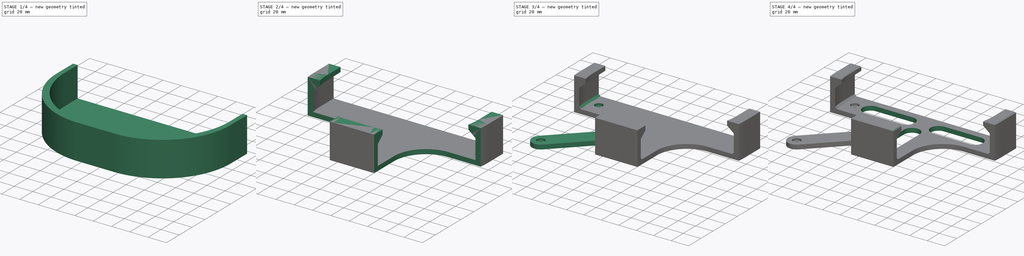
[diagram: build sequence overview — one tinted view per stage of 4, left to right]
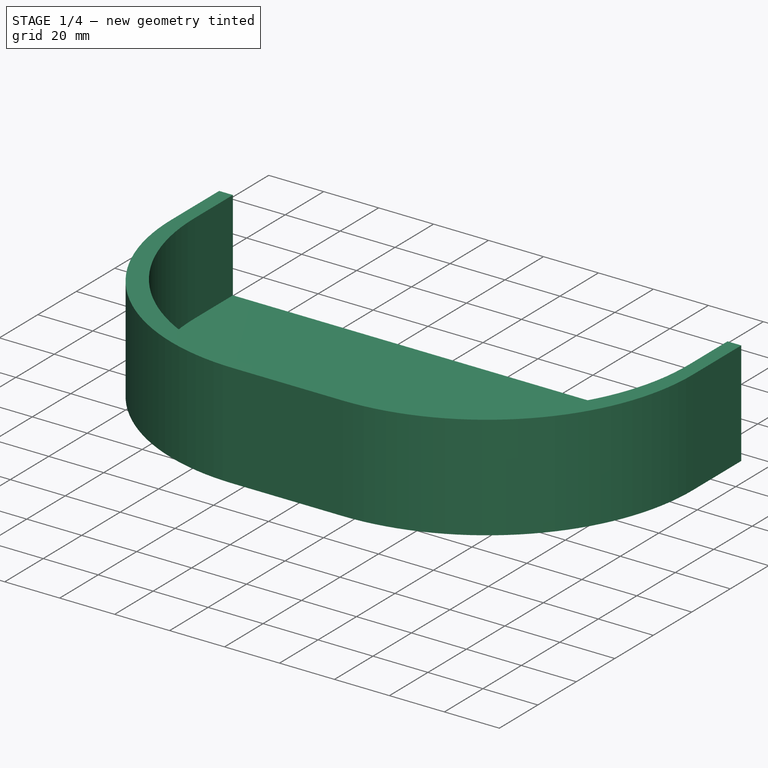
[diagram: stage 1 of 4 — iso view after this stage's code; geometry added in this stage tinted green]
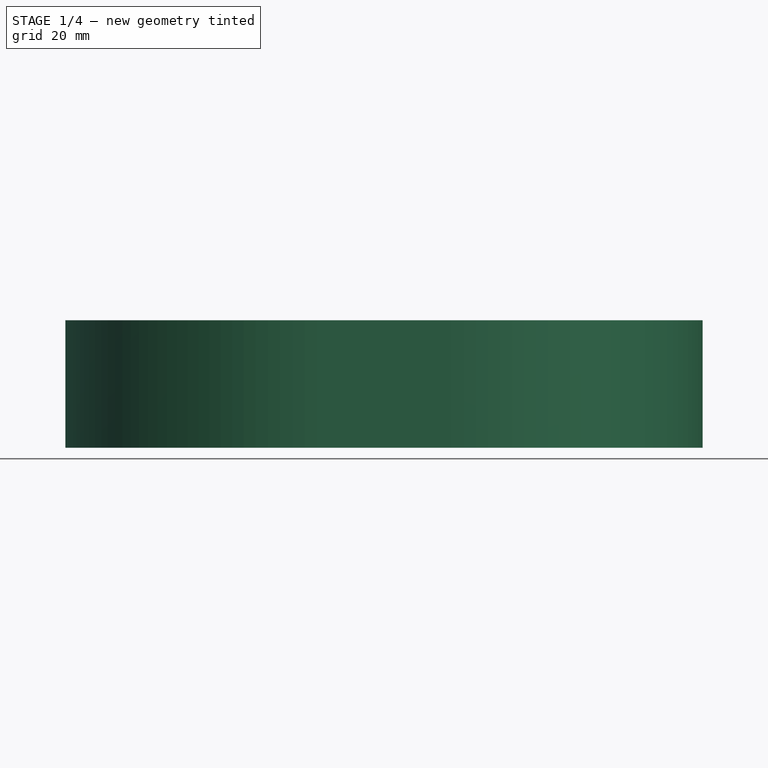
[diagram: stage 1 of 4 — front view after this stage's code; geometry added in this stage tinted green]
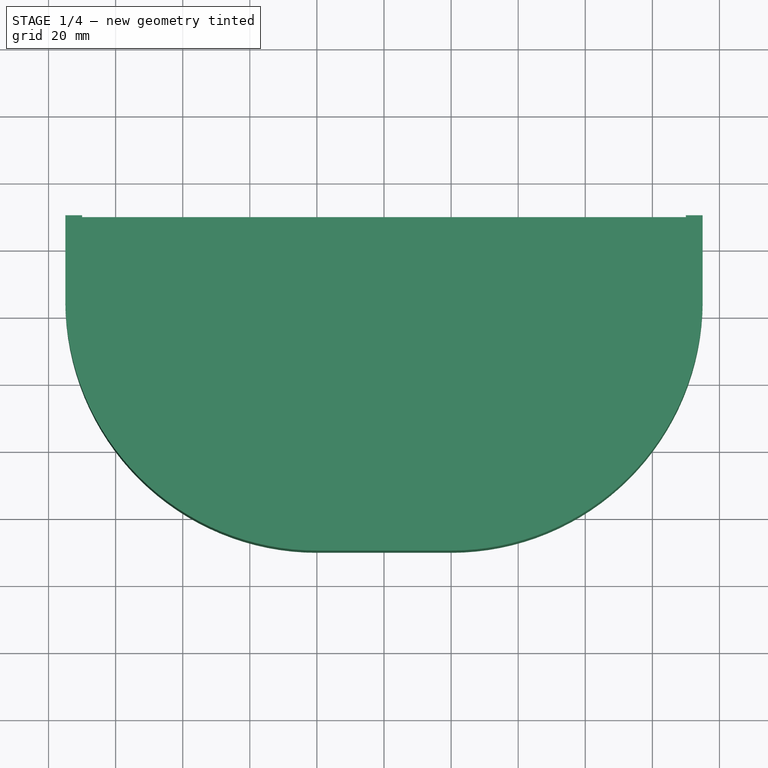
[diagram: stage 1 of 4 — top view after this stage's code; geometry added in this stage tinted green]
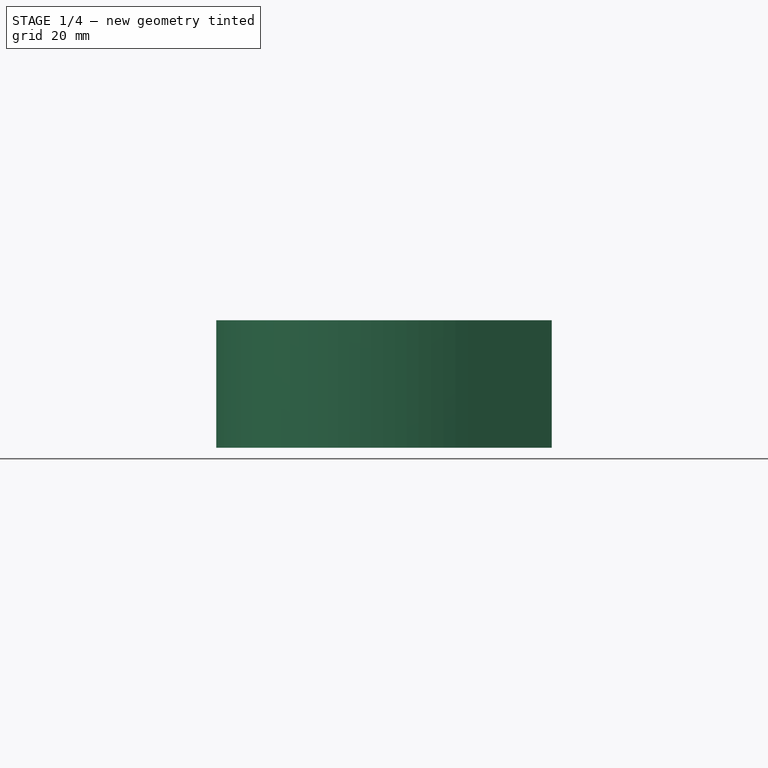
[diagram: stage 1 of 4 — right view after this stage's code; geometry added in this stage tinted green]
FCSTD DOCUMENT  (FreeCAD 0.19R23463 (Git))
Label: waagenhalter
License: All rights reserved
LicenseURL: http://en.wikipedia.org/wiki/All_rights_reserved
objects: Sketcher::SketchObject×7, PartDesign::Pocket×3, PartDesign::Pad×2, PartDesign::Chamfer×2, PartDesign::AdditivePipe×1, PartDesign::Mirrored×1, PartDesign::Hole×1, PartDesign::Body×1
note: 27 computed .brp shape members not serialized (recipe doc carries the construction recipe); baked Part::Feature solids carry a one-line shape summary decoded from their .brp

FEATURE [Sketcher::SketchObject] Sketch  label="sk_grundkoerper"
  MapMode = 5
  Support = -> [XY_Plane]
  sketch-geometry (8):
    g0: LineSegment StartX=-95 StartY=50 StartZ=0 EndX=95 EndY=50 EndZ=0
    g1: LineSegment StartX=95 StartY=50 StartZ=0 EndX=95 EndY=25 EndZ=0
    g2: LineSegment StartX=20 StartY=-50 StartZ=0 EndX=-20 EndY=-50 EndZ=0
    g3: LineSegment StartX=-95 StartY=25 StartZ=0 EndX=-95 EndY=50 EndZ=0
    g4: ArcOfCircle CenterX=-20 CenterY=25 CenterZ=0 NormalX=0 NormalY=0 NormalZ=1 AngleXU=0 Radius=75 StartAngle=3.14159 EndAngle=4.71239
    g5: ArcOfCircle CenterX=20 CenterY=25 CenterZ=0 NormalX=0 NormalY=0 NormalZ=1 AngleXU=0 Radius=75 StartAngle=4.71239 EndAngle=6.28319
    g6: GeomPoint X=0 Y=50 Z=0
    g7: GeomPoint X=0 Y=-50 Z=0
  constraints (18):
    c: Coincident(g0,g1)
    c: Coincident(g3,g0)
    c: Horizontal(g0)
    c: Vertical(g1)
    c: Vertical(g3)
    c: DistanceX(g0,g0) = 190
    c: Tangent(g2,g4) = 1.5708
    c: Tangent(g3,g4) = 1.5708
    c: Tangent(g1,g5) = 1.5708
    c: Tangent(g2,g5) = 1.5708
    c: Radius(g5) = 75
    c: Equal(g5,g4)
    c: DistanceY(g2,g0) = 100
    c: Symmetric(g2,g2,g-2)
    c: PointOnObject(g6,g0)
    c: PointOnObject(g7,g2)
    c: PointOnObject(g7,g-2)
    c: Symmetric(g6,g7,g-1)
FEATURE [PartDesign::Pad] Pad  label="grundkoerper"
  Direction = (1,1,1)
  Length = 38
  Length2 = 100
  Profile = -> Sketch
  Refine = true
  Reversed = true
  Type = 0
FEATURE [Sketcher::SketchObject] Sketch001  label="sk_hohl"
  MapMode = 5
  Support = -> [XY_Plane]
  sketch-geometry (6):
    g0: LineSegment StartX=-90 StartY=50 StartZ=0 EndX=-90 EndY=30 EndZ=0
    g1: ArcOfCircle CenterX=-15 CenterY=30 CenterZ=0 NormalX=0 NormalY=0 NormalZ=1 AngleXU=0 Radius=75 StartAngle=3.14159 EndAngle=4.71239
    g2: LineSegment StartX=-15 StartY=-45 StartZ=0 EndX=15 EndY=-45 EndZ=0
    g3: ArcOfCircle CenterX=15 CenterY=30 CenterZ=0 NormalX=0 NormalY=0 NormalZ=1 AngleXU=0 Radius=75 StartAngle=4.71239 EndAngle=6.28319
    g4: LineSegment StartX=90 StartY=30 StartZ=0 EndX=90 EndY=50 EndZ=0
    g5: LineSegment StartX=90 StartY=50 StartZ=0 EndX=-90 EndY=50 EndZ=0
  constraints (15):
    c: Vertical(g0)
    c: Tangent(g0,g1) = -1.5708
    c: Tangent(g1,g2) = -1.5708
    c: Tangent(g2,g3) = -1.5708
    c: Tangent(g3,g4) = -1.5708
    c: Coincident(g4,g5)
    c: Coincident(g5,g0)
    c: Horizontal(g5)
    c: Vertical(g4)
    c: Horizontal(g2)
    c: Radius(g1) = 75
    c: DistanceY(g2,g4) = 95
    c: Symmetric(g3,g1,g-2)
    c: DistanceX(g5,g5) = 180
    c: DistanceY(g0) = 50
FEATURE [PartDesign::Pocket] Pocket  label="aushoehlung"
  BaseFeature = -> Pad
  Length = 33
  Length2 = 100
  Profile = -> Sketch001
  Refine = true
  Type = 0
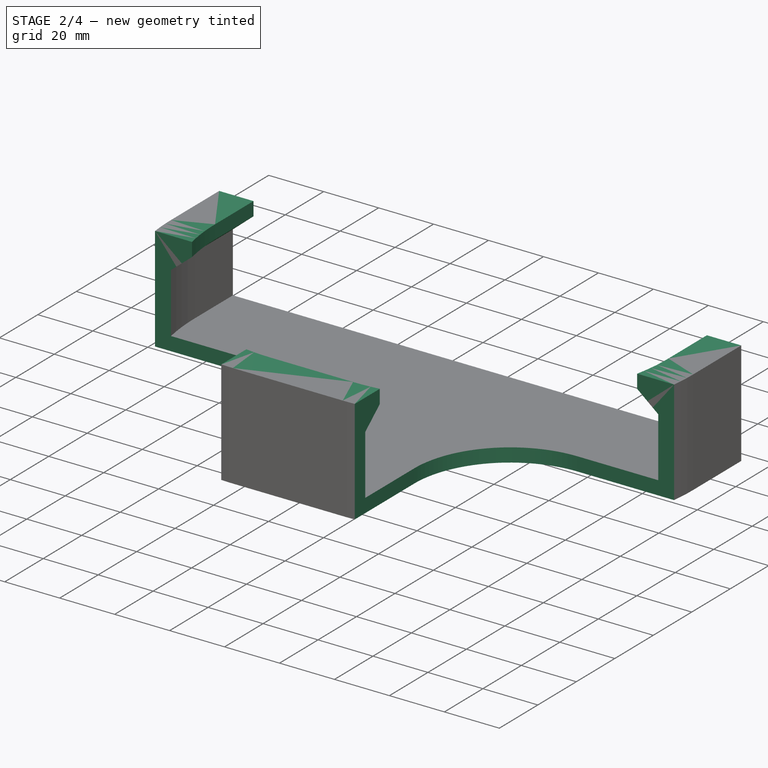
[diagram: stage 2 of 4 — iso view after this stage's code; geometry added in this stage tinted green]
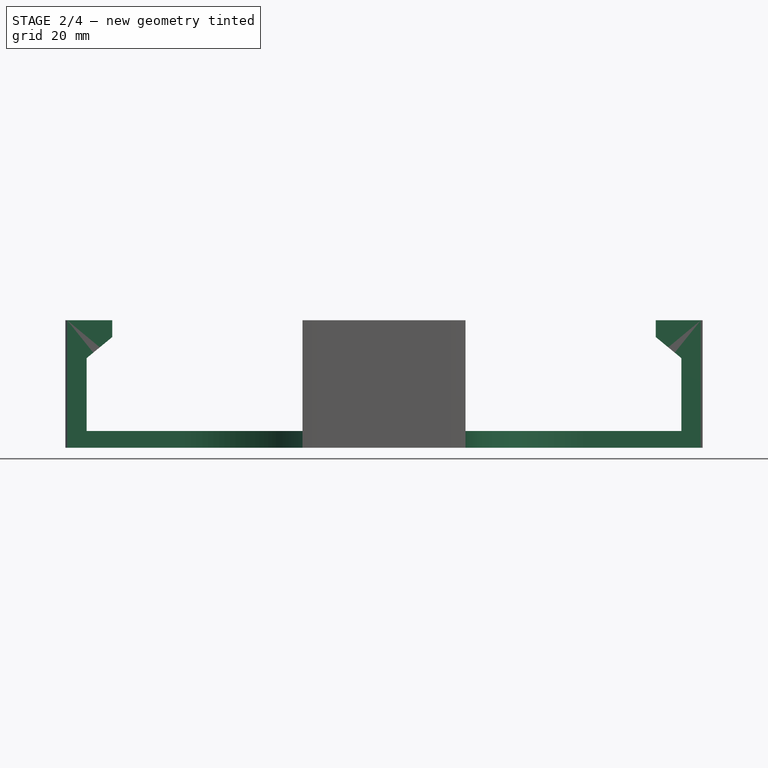
[diagram: stage 2 of 4 — front view after this stage's code; geometry added in this stage tinted green]
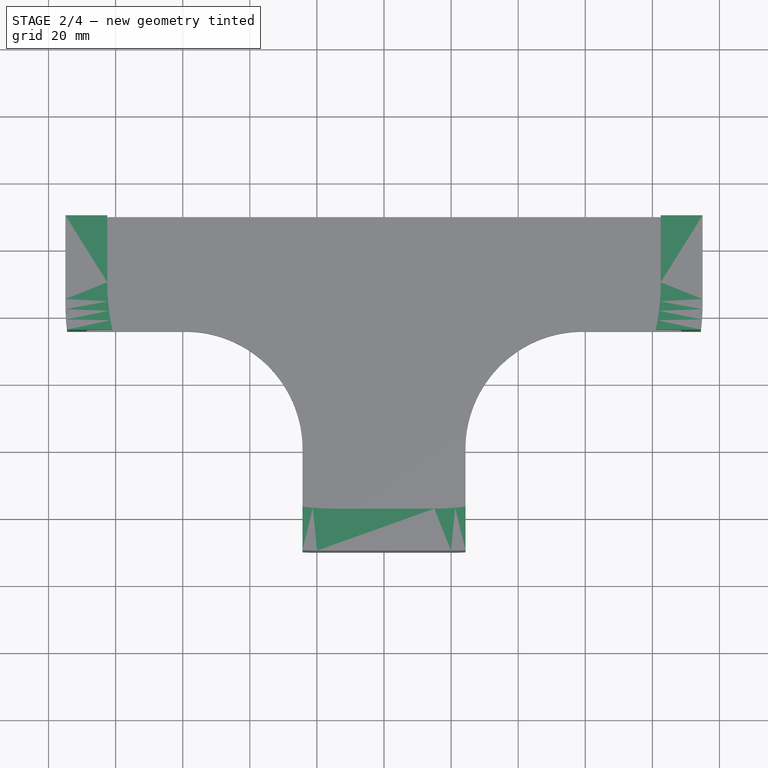
[diagram: stage 2 of 4 — top view after this stage's code; geometry added in this stage tinted green]
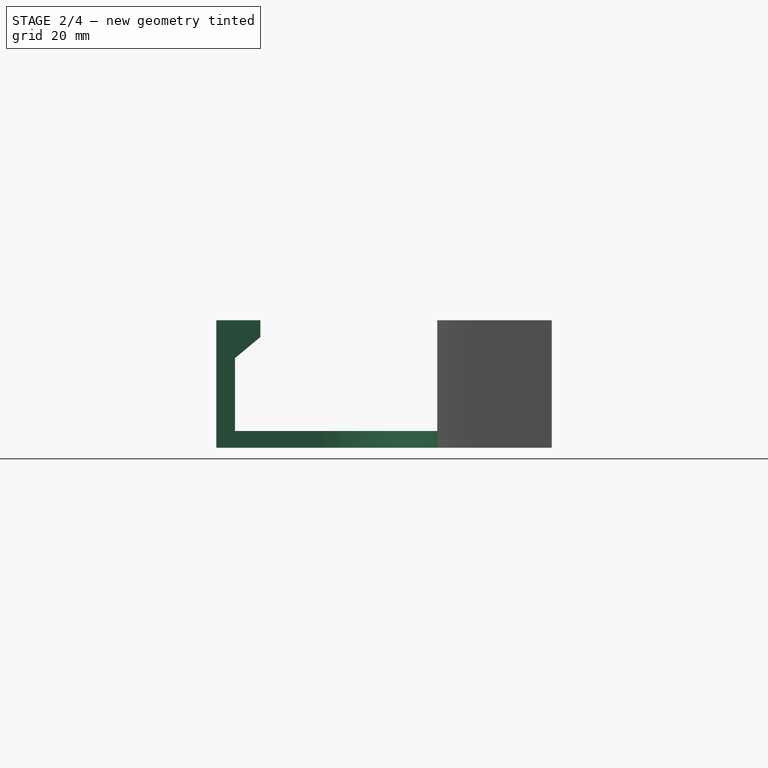
[diagram: stage 2 of 4 — right view after this stage's code; geometry added in this stage tinted green]
FEATURE [Sketcher::SketchObject] Sketch002  label="sk_nase"
  ExternalGeometry = -> [Pocket]
  MapMode = 5
  Placement = pos=(0,50,0) rot=(0,0.707107,0.707107;3.14159rad)
  Support = -> [Pocket]
  sketch-geometry (4):
    g0: LineSegment StartX=-90 StartY=0 StartZ=0 EndX=-82.5 EndY=0 EndZ=0
    g1: LineSegment StartX=-82.5 StartY=0 StartZ=0 EndX=-82.5 EndY=-5 EndZ=0
    g2: LineSegment StartX=-90 StartY=-11.2932 StartZ=0 EndX=-90 EndY=0 EndZ=0
    g3: LineSegment StartX=-82.5 StartY=-5 StartZ=0 EndX=-90 EndY=-11.2932 EndZ=0
  constraints (12):
    c: Coincident(g0,g1)
    c: Coincident(g2,g0)
    c: Horizontal(g0)
    c: Vertical(g1)
    c: Vertical(g2)
    c: PointOnObject(g0,g-1)
    c: PointOnObject(g2,g-3)
    c: DistanceX(g0,g0) = 7.5
    c: Coincident(g3,g1)
    c: Coincident(g3,g2)
    c: Angle(g3,g2) = 0.872665
    c: DistanceY(g1,g0) = 5
FEATURE [PartDesign::AdditivePipe] AdditivePipe  label="nase"
  AuxilleryCurvelinear = true
  AuxillerySpineTangent = false
  BaseFeature = -> Pocket
  Binormal = (0,0,0)
  Mode = 0
  Profile = -> Sketch002
  Refine = true
  Spine = -> Pocket [Edge18,Edge19,Edge20,Edge21,Edge22]
  SpineTangent = false
  Transformation = 0
  Transition = 0
FEATURE [Sketcher::SketchObject] Sketch003  label="sk_aussparung"
  MapMode = 5
  Support = -> [XY_Plane]
  sketch-geometry (4):
    g0: LineSegment StartX=-118.046 StartY=15.8866 StartZ=0 EndX=-59.2846 EndY=15.8866 EndZ=0
    g1: LineSegment StartX=-24.2846 StartY=-19.1134 StartZ=0 EndX=-24.2846 EndY=-103.129 EndZ=0
    g2: LineSegment StartX=-118.046 StartY=15.8866 StartZ=0 EndX=-24.2846 EndY=-103.129 EndZ=0
    g3: ArcOfCircle CenterX=-59.2846 CenterY=-19.1134 CenterZ=0 NormalX=0 NormalY=0 NormalZ=1 AngleXU=0 Radius=35 StartAngle=0 EndAngle=1.5708
  constraints (7):
    c: Horizontal(g0)
    c: Vertical(g1)
    c: Coincident(g2,g0)
    c: Coincident(g2,g1)
    c: Tangent(g0,g3) = 1.5708
    c: Tangent(g1,g3) = 1.5708
    c: Radius(g3) = 35
FEATURE [PartDesign::Pocket] Pocket001  label="aussparung"
  BaseFeature = -> AdditivePipe
  Length = 5
  Length2 = 100
  Profile = -> Sketch003
  Refine = true
  Type = 1
FEATURE [PartDesign::Mirrored] Mirrored
  BaseFeature = -> Pocket001
  MirrorPlane = -> Sketch003 [V_Axis]
  Originals = -> [Pocket001]
  Refine = true
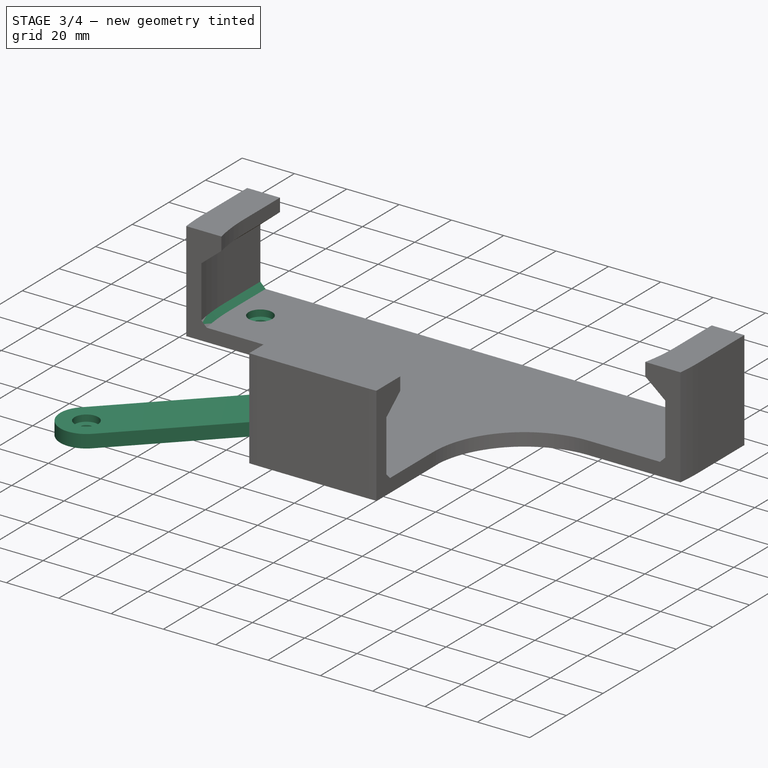
[diagram: stage 3 of 4 — iso view after this stage's code; geometry added in this stage tinted green]
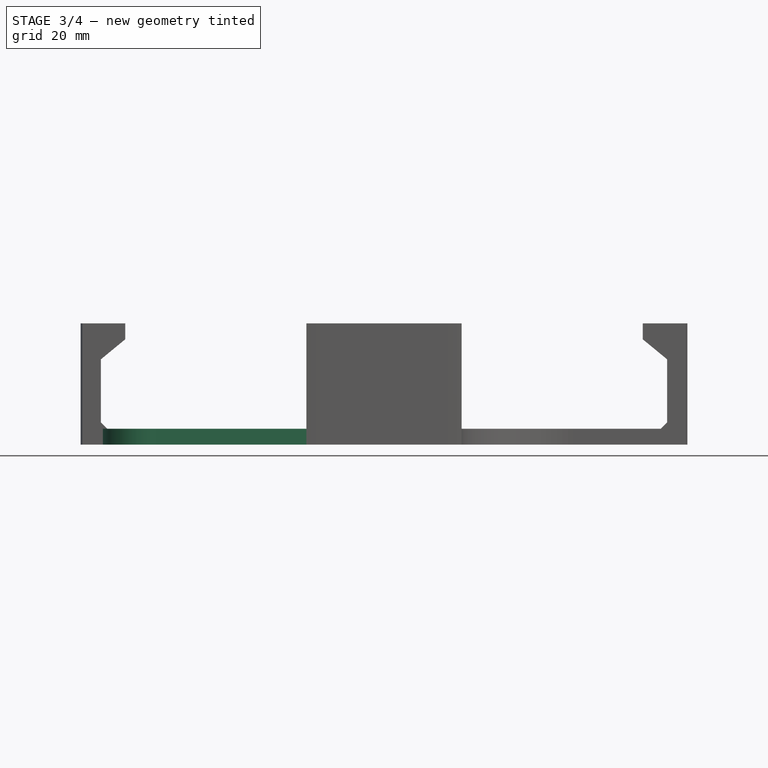
[diagram: stage 3 of 4 — front view after this stage's code; geometry added in this stage tinted green]
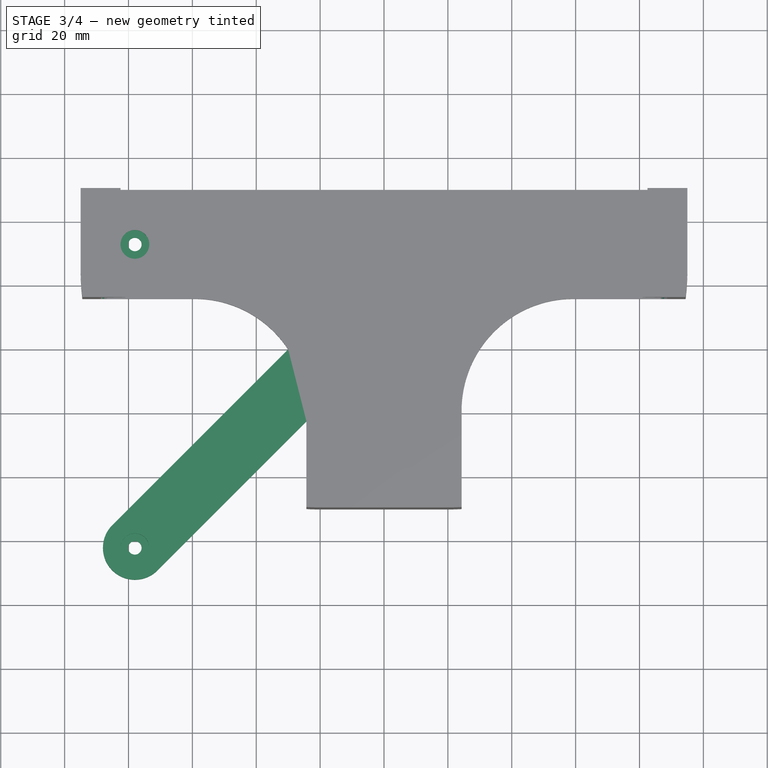
[diagram: stage 3 of 4 — top view after this stage's code; geometry added in this stage tinted green]
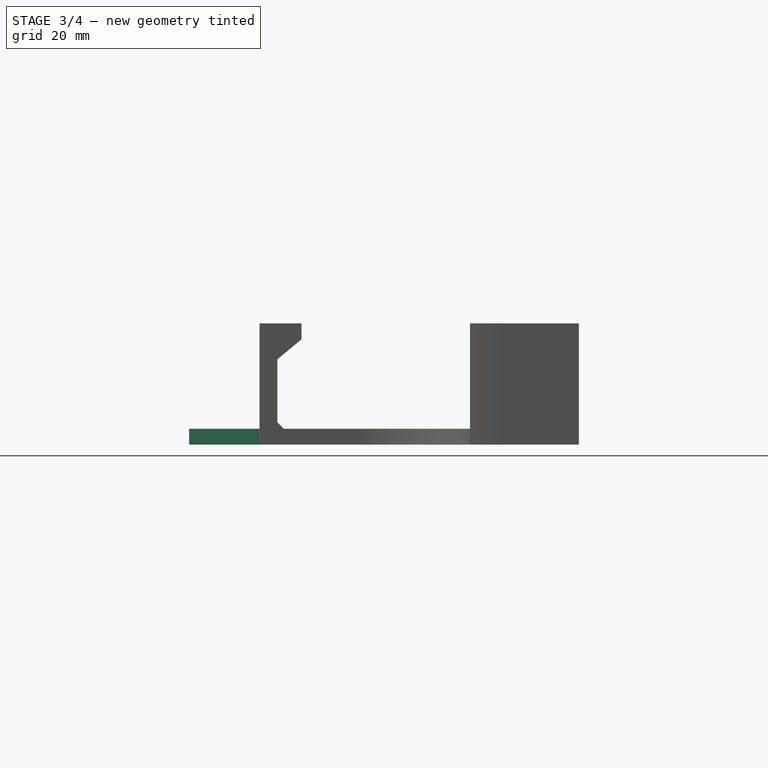
[diagram: stage 3 of 4 — right view after this stage's code; geometry added in this stage tinted green]
FEATURE [PartDesign::Chamfer] Chamfer  label="phase_innen"
  Angle = 45
  Base = -> Mirrored [Edge49,Edge50,Edge48,Edge43,Edge54,Edge44,Edge45]
  BaseFeature = -> Mirrored
  ChamferType = 0
  FlipDirection = false
  Refine = true
  Size = 2
  Size2 = 1
  SupportTransform = false
FEATURE [Sketcher::SketchObject] Sketch004  label="sk_bohrung"
  ExternalGeometry = -> [Chamfer]
  MapMode = 5
  Placement = pos=(0,0,-33) rot=(0,0,1;0rad)
  Support = -> [Chamfer]
  sketch-geometry (4):
    g0: Circle CenterX=-78 CenterY=32.9433 CenterZ=0 NormalX=0 NormalY=0 NormalZ=1 AngleXU=0 Radius=2
    g1: Circle CenterX=-78 CenterY=-62.0567 CenterZ=0 NormalX=0 NormalY=0 NormalZ=1 AngleXU=0 Radius=2
    g2: GeomPoint X=-78 Y=50 Z=0
    g3: GeomPoint X=-78 Y=15.8866 Z=0
  constraints (9):
    c: Diameter(g0) = 4
    c: Equal(g0,g1)
    c: Vertical(g1,g0)
    c: DistanceY(g1,g0) = 95
    c: DistanceX(g0) = -78
    c: PointOnObject(g2,g-3)
    c: PointOnObject(g3,g-4)
    c: Vertical(g0,g3)
    c: Symmetric(g2,g3,g0)
FEATURE [Sketcher::SketchObject] Sketch005  label="sk_arm"
  ExternalGeometry = -> [Sketch004]
  MapMode = 5
  Placement = pos=(0,0,-33) rot=(0,0,1;0rad)
  Support = -> [Chamfer]
  sketch-geometry (4):
    g0: LineSegment StartX=-14.1421 StartY=15.9433 StartZ=0 EndX=-85.0711 EndY=-54.9856 EndZ=0
    g1: ArcOfCircle CenterX=-78 CenterY=-62.0567 CenterZ=0 NormalX=0 NormalY=0 NormalZ=1 AngleXU=0 Radius=10 StartAngle=2.35619 EndAngle=5.49779
    g2: LineSegment StartX=-70.9289 StartY=-69.1277 StartZ=0 EndX=0 EndY=1.80119 EndZ=0
    g3: LineSegment StartX=0 StartY=1.80119 StartZ=0 EndX=-14.1421 EndY=15.9433 EndZ=0
  constraints (10):
    c: Tangent(g0,g1) = -1.5708
    c: Tangent(g1,g2) = -1.5708
    c: Coincident(g2,g3)
    c: Coincident(g3,g0)
    c: Coincident(g1,g-3)
    c: Diameter(g1) = 20
    c: Parallel(g2,g0)
    c: Angle(g2,g-2) = 0.785398
    c: PointOnObject(g2,g-2)
    c: Perpendicular(g2,g3)
FEATURE [PartDesign::Pad] Pad001  label="arm"
  BaseFeature = -> Chamfer
  Direction = (1,1,1)
  Length = 5
  Length2 = 100
  Profile = -> Sketch005
  Refine = true
  Reversed = true
  Type = 0
FEATURE [PartDesign::Hole] Hole  label="bohrungen"
  BaseFeature = -> Pad001
  Depth = 25
  DepthType = 1
  Diameter = 4.2
  DrillPoint = 0
  DrillPointAngle = 118
  HoleCutCountersinkAngle = 90
  HoleCutDepth = 2.5
  HoleCutDiameter = 9
  HoleCutType = 1
  ModelActualThread = false
  Profile = -> Sketch004
  Refine = true
  Tapered = false
  TaperedAngle = 90
  ThreadAngle = 0
  ThreadClass = 0
  ThreadCutOffInner = 0
  ThreadCutOffOuter = 0
  ThreadDirection = 0
  ThreadFit = 0
  ThreadPitch = 0
  ThreadSize = 0
  ThreadType = 0
  Threaded = false
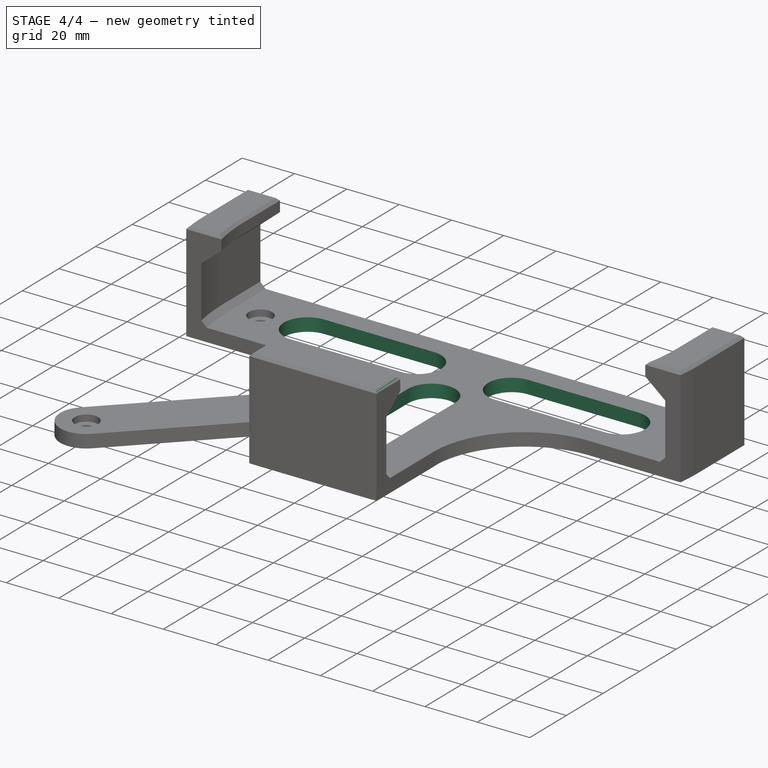
[diagram: stage 4 of 4 — iso view after this stage's code; geometry added in this stage tinted green]
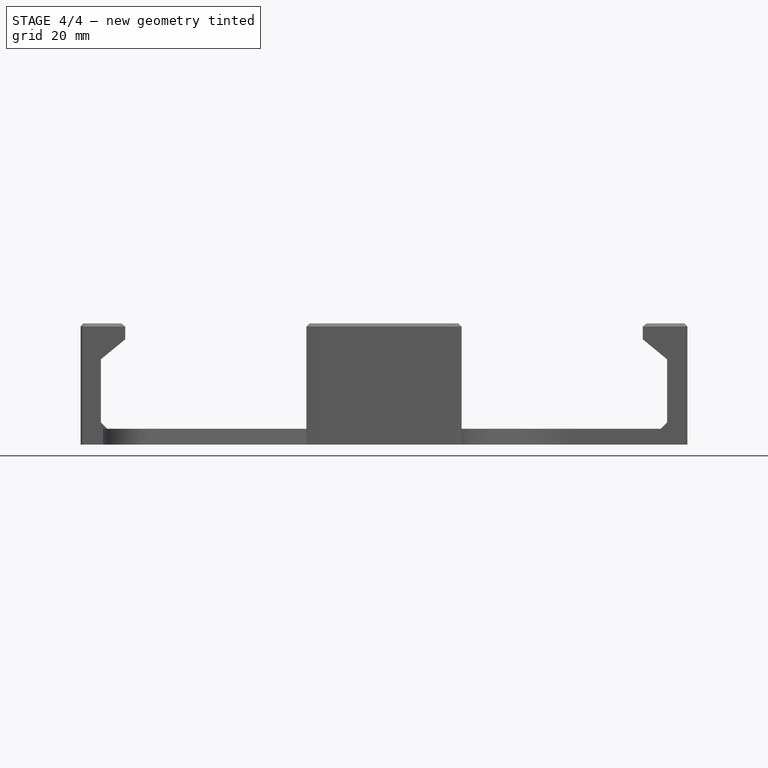
[diagram: stage 4 of 4 — front view after this stage's code; geometry added in this stage tinted green]
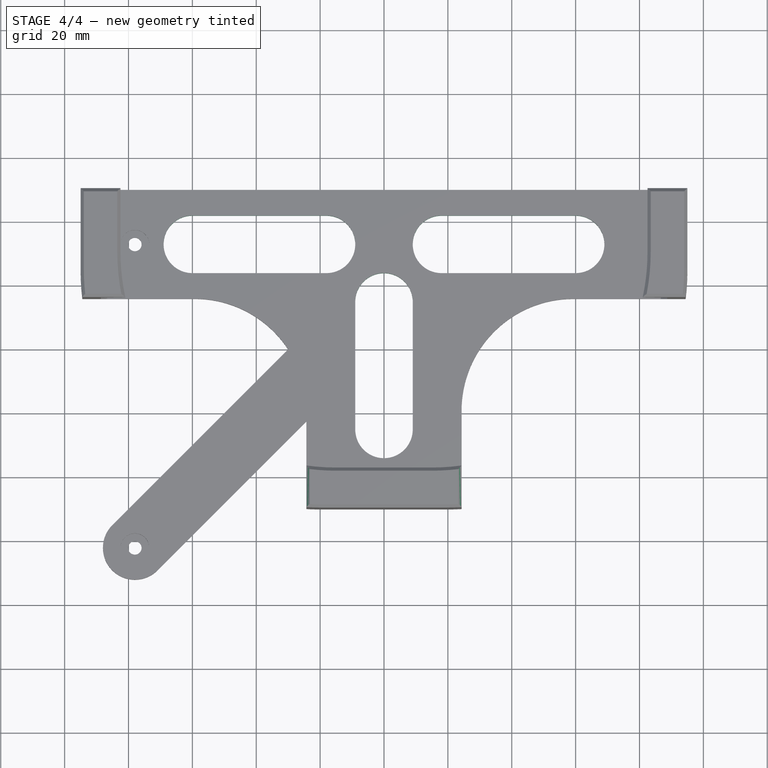
[diagram: stage 4 of 4 — top view after this stage's code; geometry added in this stage tinted green]
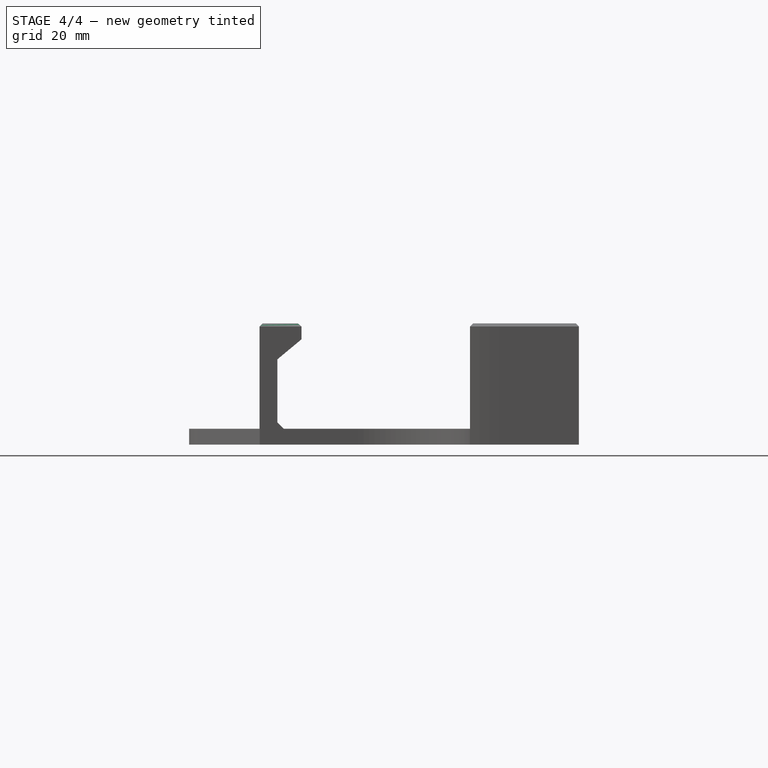
[diagram: stage 4 of 4 — right view after this stage's code; geometry added in this stage tinted green]
FEATURE [Sketcher::SketchObject] Sketch006  label="sk_aussparung_mitte"
  ExternalGeometry = -> [Hole]
  MapMode = 5
  Support = -> [XY_Plane]
  sketch-geometry (16):
    g0: LineSegment StartX=-60 StartY=41.9433 StartZ=0 EndX=-18 EndY=41.9433 EndZ=0
    g1: ArcOfCircle CenterX=60 CenterY=32.9433 CenterZ=0 NormalX=0 NormalY=0 NormalZ=1 AngleXU=0 Radius=9 StartAngle=4.71239 EndAngle=7.85398
    g2: LineSegment StartX=60 StartY=23.9433 StartZ=0 EndX=18 EndY=23.9433 EndZ=0
    g3: ArcOfCircle CenterX=18 CenterY=14.9433 CenterZ=0 NormalX=0 NormalY=0 NormalZ=1 AngleXU=0 Radius=9 StartAngle=1.5708 EndAngle=3.14159
    g4: LineSegment StartX=9 StartY=14.9433 StartZ=0 EndX=9 EndY=-25 EndZ=0
    g5: ArcOfCircle CenterX=0 CenterY=-25 CenterZ=0 NormalX=0 NormalY=0 NormalZ=1 AngleXU=0 Radius=9 StartAngle=3.14159 EndAngle=6.28319
    g6: LineSegment StartX=-9 StartY=-25 StartZ=0 EndX=-9 EndY=14.9433 EndZ=0
    g7: ArcOfCircle CenterX=-18 CenterY=14.9433 CenterZ=0 NormalX=0 NormalY=0 NormalZ=1 AngleXU=0 Radius=9 StartAngle=0 EndAngle=1.5708
    g8: LineSegment StartX=-18 StartY=23.9433 StartZ=0 EndX=-60 EndY=23.9433 EndZ=0
    g9: ArcOfCircle CenterX=-60 CenterY=32.9433 CenterZ=0 NormalX=0 NormalY=0 NormalZ=1 AngleXU=0 Radius=9 StartAngle=1.5708 EndAngle=4.71239
    g10: LineSegment StartX=-60 StartY=41.9433 StartZ=0 EndX=-60 EndY=23.9433 EndZ=0
    g11: LineSegment StartX=9 StartY=-25 StartZ=0 EndX=-9 EndY=-25 EndZ=0
    g12: ArcOfCircle CenterX=-18 CenterY=32.9433 CenterZ=0 NormalX=0 NormalY=0 NormalZ=1 AngleXU=0 Radius=9 StartAngle=4.71239 EndAngle=7.85398
    g13: ArcOfCircle CenterX=18 CenterY=32.9433 CenterZ=0 NormalX=0 NormalY=0 NormalZ=1 AngleXU=0 Radius=9 StartAngle=1.5708 EndAngle=4.71239
    g14: ArcOfCircle CenterX=-1e-16 CenterY=14.9433 CenterZ=0 NormalX=0 NormalY=0 NormalZ=1 AngleXU=0 Radius=9 StartAngle=1e-16 EndAngle=3.14159
    g15: LineSegment StartX=18 StartY=41.9433 StartZ=0 EndX=60 EndY=41.9433 EndZ=0
  constraints (38):
    c: Horizontal(g0)
    c: Tangent(g1,g2) = 1.5708
    c: Tangent(g2,g3) = -1.5708
    c: Tangent(g3,g4) = -1.5708
    c: Tangent(g4,g5) = 1.5708
    c: Tangent(g5,g6) = 1.5708
    c: Tangent(g6,g7) = -1.5708
    c: Tangent(g7,g8) = -1.5708
    c: Tangent(g8,g9) = 1.5708
    c: Horizontal(g2)
    c: Horizontal(g8)
    c: Tangent(g9,g0) = 1.5708
    c: Vertical(g6)
    c: Vertical(g4)
    c: Equal(g8,g2)
    c: Equal(g6,g4)
    c: PointOnObject(g5,g-2)
    c: Horizontal(g2,g7)
    c: Coincident(g10,g0)
    c: Coincident(g10,g8)
    c: Coincident(g11,g4)
    c: Coincident(g11,g5)
    c: Equal(g10,g11)
    c: DistanceY(g10,g10) = 18
    c: Horizontal(g-3,g9)
    c: Equal(g5,g3)
    c: DistanceX(g1) = 60
    c: DistanceY(g5,g-1) = 25
    c: Tangent(g12,g8) = 1.5708
    c: Tangent(g12,g0)
    c: Tangent(g13,g0)
    c: Tangent(g13,g2) = 1.5708
    c: Coincident(g14,g6)
    c: Tangent(g14,g4) = 1.5708
    c: Coincident(g0,g12)
    c: Coincident(g15,g13)
    c: Tangent(g0,g15)
    c: Tangent(g15,g1) = 1.5708
FEATURE [PartDesign::Pocket] Pocket002  label="aussparung_mitte"
  BaseFeature = -> Hole
  Length = 5
  Length2 = 100
  Profile = -> Sketch006
  Refine = true
  Type = 1
FEATURE [PartDesign::Chamfer] Chamfer001  label="phase"
  Angle = 45
  Base = -> Pocket002 [Face8,Face15,Face60]
  BaseFeature = -> Pocket002
  ChamferType = 0
  FlipDirection = false
  Refine = true
  Size = 1
  Size2 = 1
  SupportTransform = false
FEATURE [PartDesign::Body] Body
  Group = -> [Sketch,Pad,Sketch001,Pocket,Sketch002,AdditivePipe,Sketch003,Pocket001,Mirrored,Chamfer,Sketch004,Sketch005,Pad001,Hole,Sketch006,Pocket002,Chamfer001]
  Origin = -> Origin
  Tip = -> Chamfer001
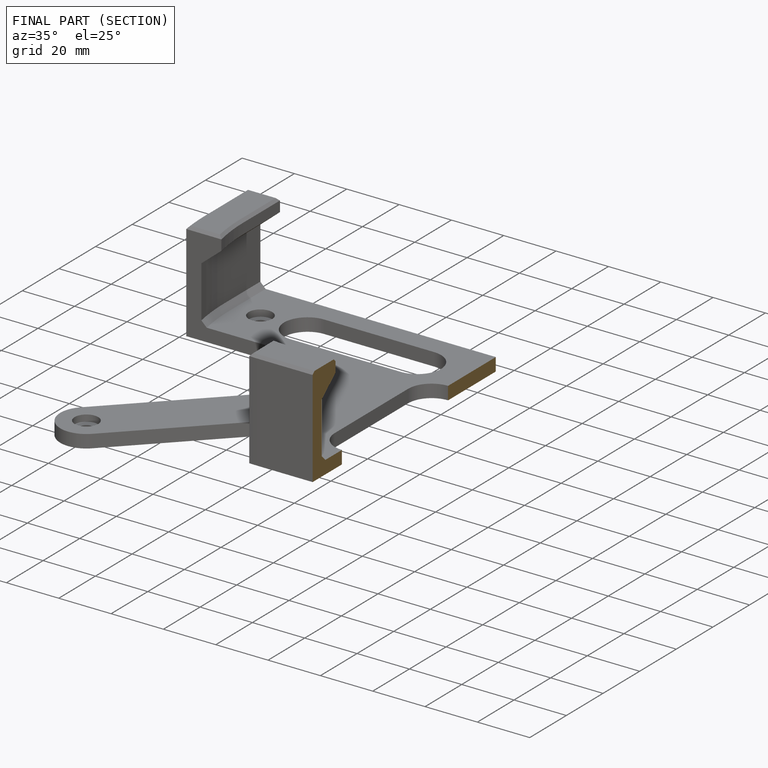
[diagram: finished part — half-section view (interior)]
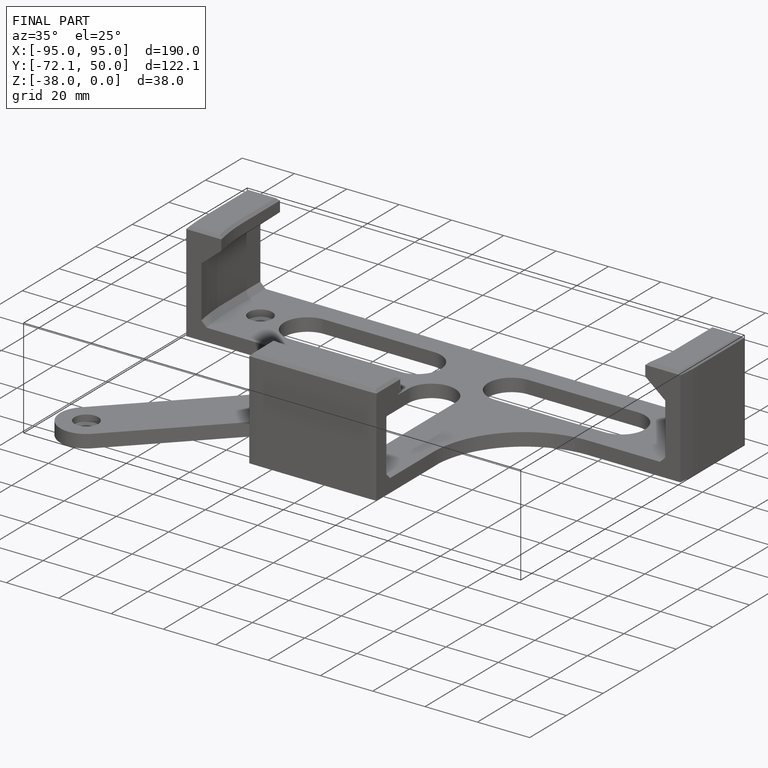
[diagram: finished part — iso view with bounding-box wireframe]
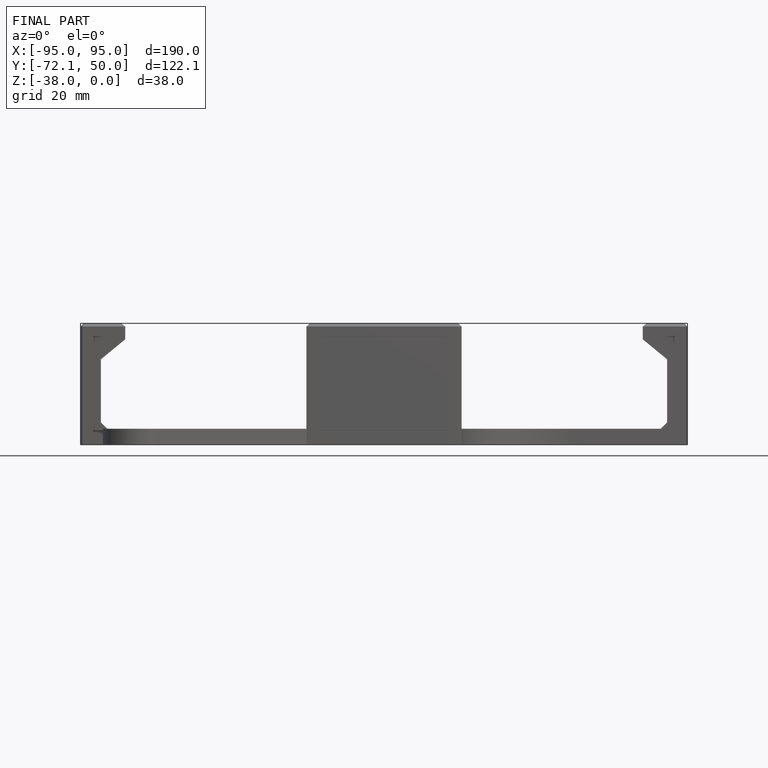
[diagram: finished part — front view with bounding-box wireframe]
